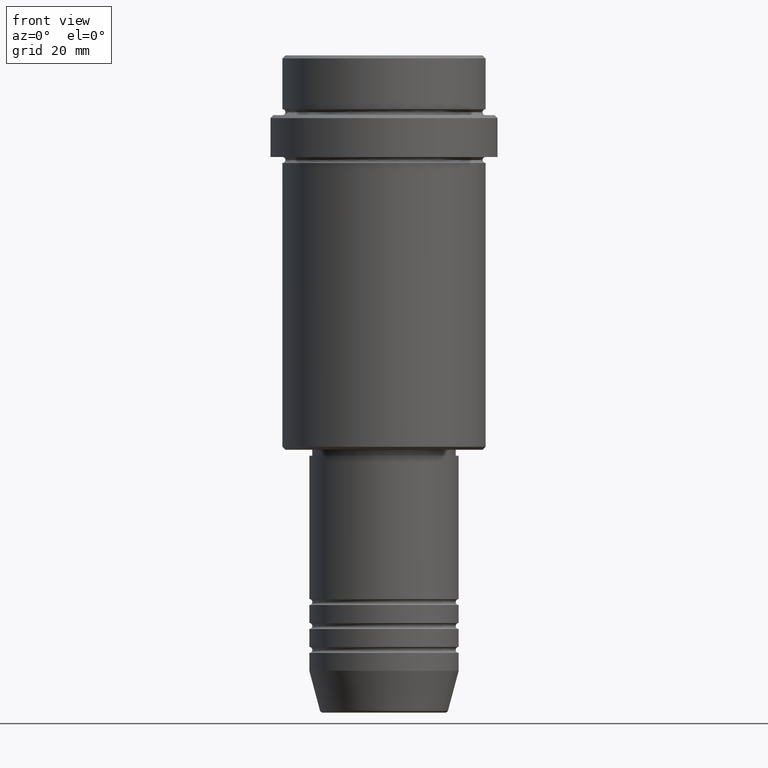
[diagram: clean part render]
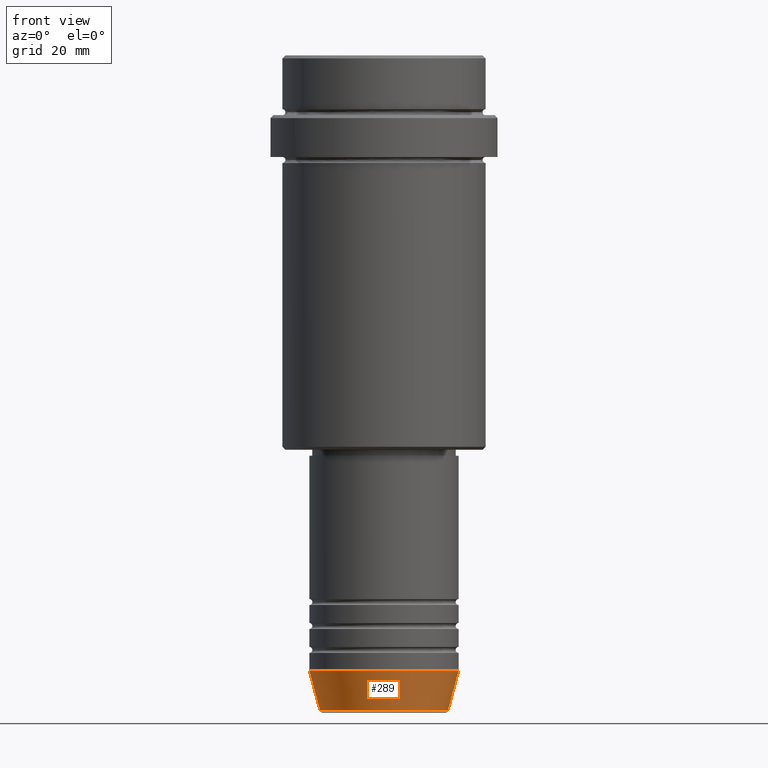
[diagram: same view with one face highlighted and labeled with its STEP entity id]
A machine part, front view. The second image highlights one B-rep face of the part: STEP entity #289.
In plain terms, the highlighted conical surface has half-angle 15 deg.
Its self-contained STEP definition (entity closure, byte-faithful):
#34 = CARTESIAN_POINT ( 'NONE',  ( 10.72365507213718416, 0.000000000000000000, -109.6294095225512706 ) ) ;
#102 = CARTESIAN_POINT ( 'NONE',  ( 0.000000000000000000, 0.000000000000000000, -109.6294095225512706 ) ) ;
#116 = CIRCLE ( 'NONE', #605, 10.72365507213718416 ) ;
#118 = CONICAL_SURFACE ( 'NONE', #275, 12.50000000000000000, 0.2617993877991500740 ) ;
#148 = CARTESIAN_POINT ( 'NONE',  ( -12.50000000000000000, 1.530808498934191521E-15, -103.0000000000000142 ) ) ;
#263 = DIRECTION ( 'NONE',  ( -0.000000000000000000, -0.000000000000000000, 1.000000000000000000 ) ) ;
#275 = AXIS2_PLACEMENT_3D ( 'NONE', #803, #263, #960 ) ;
#278 = EDGE_CURVE ( 'NONE', #330, #980, #1356, .T. ) ;
#289 = ADVANCED_FACE ( 'NONE', ( #684 ), #118, .T. ) ;
#299 = EDGE_LOOP ( 'NONE', ( #512, #1296, #1413, #1053 ) ) ;
#330 = VERTEX_POINT ( 'NONE', #820 ) ;
#357 = DIRECTION ( 'NONE',  ( 1.000000000000000000, 0.000000000000000000, 0.000000000000000000 ) ) ;
#468 = CARTESIAN_POINT ( 'NONE',  ( 0.000000000000000000, 0.000000000000000000, -103.0000000000000142 ) ) ;
#512 = ORIENTED_EDGE ( 'NONE', *, *, #278, .F. ) ;
#538 = VECTOR ( 'NONE', #759, 1000.000000000000000 ) ;
#542 = CARTESIAN_POINT ( 'NONE',  ( 12.50000000000000000, 0.000000000000000000, -103.0000000000000142 ) ) ;
#605 = AXIS2_PLACEMENT_3D ( 'NONE', #102, #853, #1300 ) ;
#624 = AXIS2_PLACEMENT_3D ( 'NONE', #468, #915, #357 ) ;
#684 = FACE_OUTER_BOUND ( 'NONE', #299, .T. ) ;
#690 = VERTEX_POINT ( 'NONE', #1206 ) ;
#722 = VERTEX_POINT ( 'NONE', #34 ) ;
#759 = DIRECTION ( 'NONE',  ( 0.2588190451025213501, 0.000000000000000000, 0.9659258262890680902 ) ) ;
#799 = CIRCLE ( 'NONE', #624, 12.50000000000000000 ) ;
#803 = CARTESIAN_POINT ( 'NONE',  ( 0.000000000000000000, 0.000000000000000000, -103.0000000000000142 ) ) ;
#820 = CARTESIAN_POINT ( 'NONE',  ( -10.72365507213718416, 1.422038742429749727E-15, -109.6294095225512706 ) ) ;
#853 = DIRECTION ( 'NONE',  ( -0.000000000000000000, -0.000000000000000000, 1.000000000000000000 ) ) ;
#913 = DIRECTION ( 'NONE',  ( -0.2588190451025213501, 3.169619151431772337E-17, 0.9659258262890680902 ) ) ;
#915 = DIRECTION ( 'NONE',  ( -0.000000000000000000, -0.000000000000000000, 1.000000000000000000 ) ) ;
#927 = VECTOR ( 'NONE', #913, 1000.000000000000000 ) ;
#959 = EDGE_CURVE ( 'NONE', #330, #722, #116, .T. ) ;
#960 = DIRECTION ( 'NONE',  ( 1.000000000000000000, 0.000000000000000000, 0.000000000000000000 ) ) ;
#980 = VERTEX_POINT ( 'NONE', #1192 ) ;
#1053 = ORIENTED_EDGE ( 'NONE', *, *, #1412, .F. ) ;
#1111 = EDGE_CURVE ( 'NONE', #722, #690, #1317, .T. ) ;
#1192 = CARTESIAN_POINT ( 'NONE',  ( -12.50000000000000000, 1.530808498934191521E-15, -103.0000000000000142 ) ) ;
#1206 = CARTESIAN_POINT ( 'NONE',  ( 12.50000000000000000, 0.000000000000000000, -103.0000000000000142 ) ) ;
#1296 = ORIENTED_EDGE ( 'NONE', *, *, #959, .T. ) ;
#1300 = DIRECTION ( 'NONE',  ( 1.000000000000000000, 0.000000000000000000, 0.000000000000000000 ) ) ;
#1317 = LINE ( 'NONE', #542, #538 ) ;
#1356 = LINE ( 'NONE', #148, #927 ) ;
#1412 = EDGE_CURVE ( 'NONE', #980, #690, #799, .T. ) ;
#1413 = ORIENTED_EDGE ( 'NONE', *, *, #1111, .T. ) ;